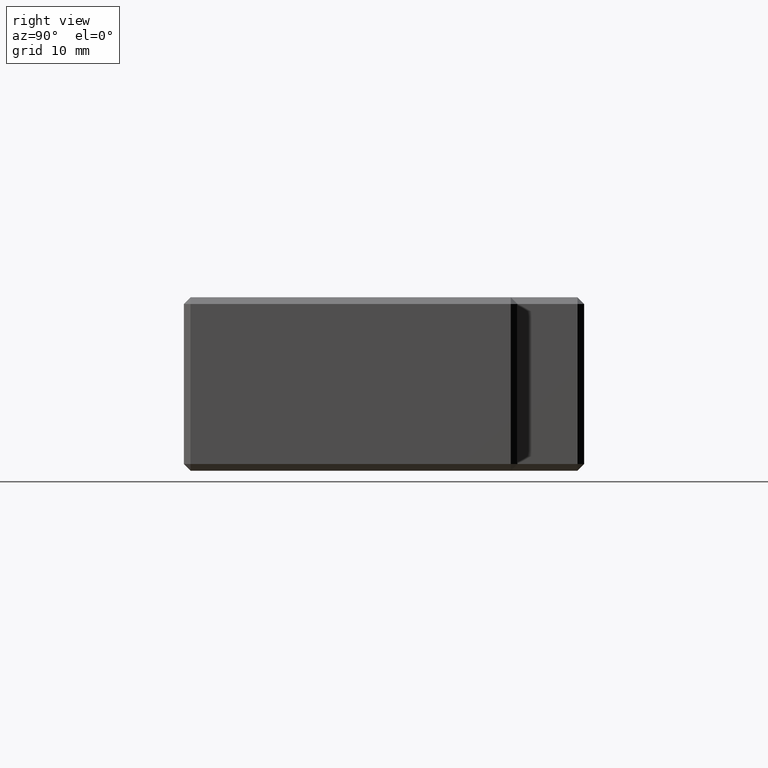
[diagram: clean part render]
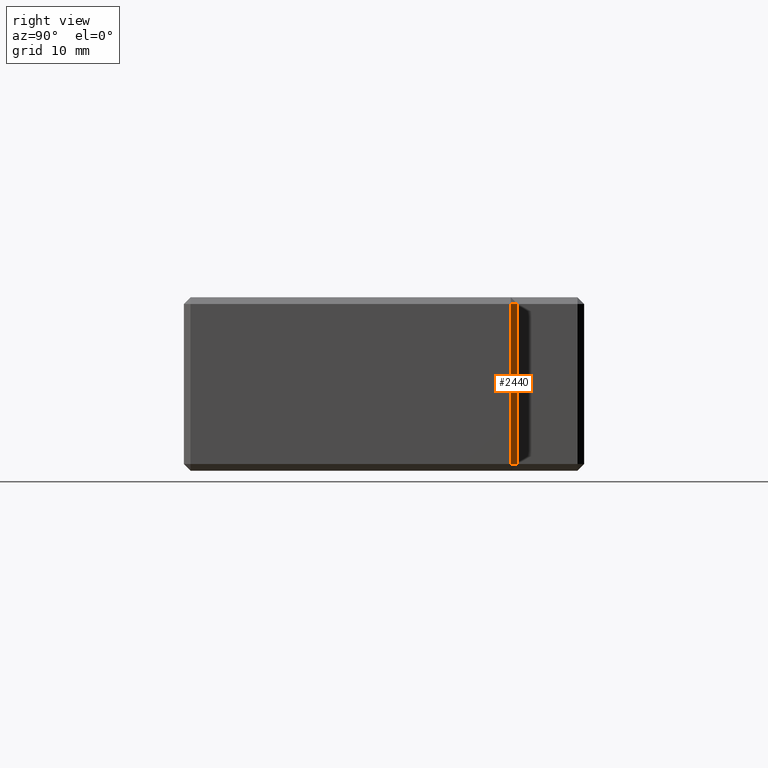
[diagram: same view with one face highlighted and labeled with its STEP entity id]
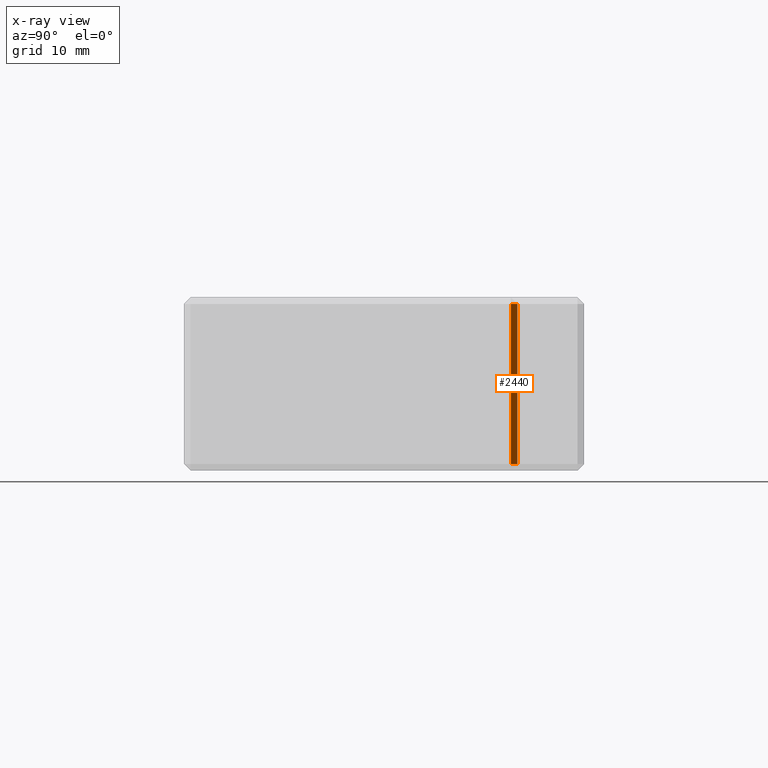
[diagram: x-ray of the same camera — body ghosted, the highlighted face saturated]
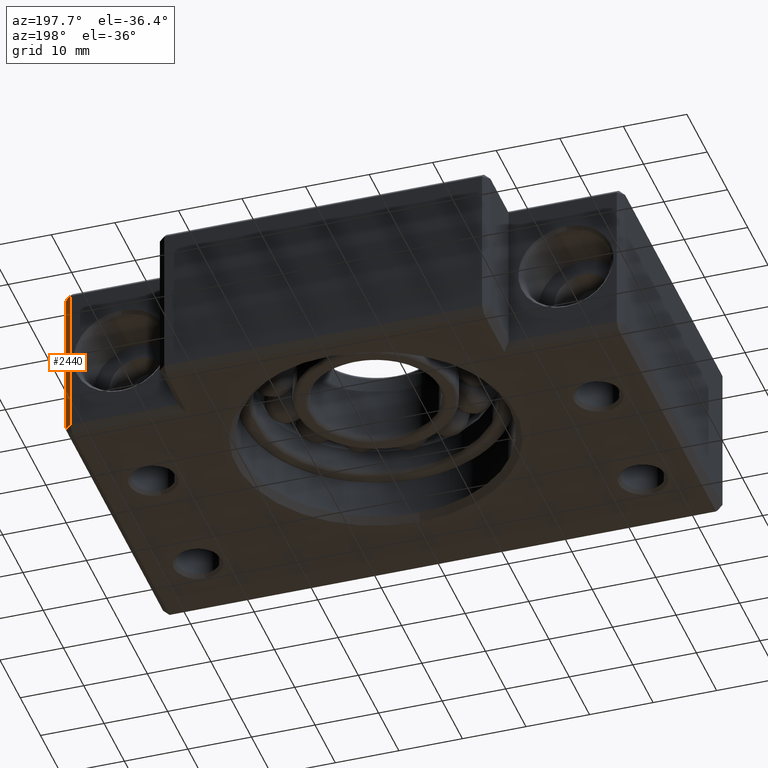
[diagram: same view with one face highlighted and labeled with its STEP entity id]
A machine part, right view. The second image highlights one B-rep face of the part: STEP entity #2440.
The next image is the same camera in x-ray: the body ghosted, the highlighted face saturated — about 0% of this face is hidden behind the body in this view.
A second angle (auxiliary view) of the same face is appended — the face is thin or edge-on in the first view.
In plain terms, the highlighted planar face has unit normal (-0.7071, -0.7071, 0).
Its self-contained STEP definition (entity closure, byte-faithful):
#45 = VECTOR ( 'NONE', #1629, 1000.000000000000000 ) ;
#133 = CARTESIAN_POINT ( 'NONE',  ( 43.00000000000003600, 50.00000000000001400, 12.00000000000002700 ) ) ;
#408 = LINE ( 'NONE', #1052, #476 ) ;
#466 = EDGE_CURVE ( 'NONE', #3580, #5408, #4019, .T. ) ;
#476 = VECTOR ( 'NONE', #1076, 1000.000000000000100 ) ;
#771 = LINE ( 'NONE', #3223, #951 ) ;
#951 = VECTOR ( 'NONE', #3243, 1000.000000000000000 ) ;
#962 = EDGE_CURVE ( 'NONE', #3580, #2689, #771, .T. ) ;
#976 = CARTESIAN_POINT ( 'NONE',  ( 44.00000000000002100, 49.00000000000004300, -12.00000000000003600 ) ) ;
#1052 = CARTESIAN_POINT ( 'NONE',  ( 44.00000000000002100, 49.00000000000004300, -12.00000000000003000 ) ) ;
#1076 = DIRECTION ( 'NONE',  ( 0.7071067811865474600, -0.7071067811865474600, -0.0000000000000000000 ) ) ;
#1095 = DIRECTION ( 'NONE',  ( -0.7071067811865474600, 0.7071067811865474600, -0.0000000000000000000 ) ) ;
#1106 = FACE_OUTER_BOUND ( 'NONE', #1988, .T. ) ;
#1181 = ORIENTED_EDGE ( 'NONE', *, *, #466, .F. ) ;
#1222 = ORIENTED_EDGE ( 'NONE', *, *, #3183, .T. ) ;
#1301 = ORIENTED_EDGE ( 'NONE', *, *, #2764, .F. ) ;
#1308 = ORIENTED_EDGE ( 'NONE', *, *, #962, .T. ) ;
#1576 = CARTESIAN_POINT ( 'NONE',  ( 43.00000000000003600, 50.00000000000001400, 13.00000000000000200 ) ) ;
#1629 = DIRECTION ( 'NONE',  ( -0.0000000000000000000, 0.0000000000000000000, 1.000000000000000000 ) ) ;
#1988 = EDGE_LOOP ( 'NONE', ( #1222, #1181, #1308, #1301 ) ) ;
#2358 = DIRECTION ( 'NONE',  ( -0.7071067811865475700, -0.7071067811865475700, 0.0000000000000000000 ) ) ;
#2440 = ADVANCED_FACE ( 'NONE', ( #1106 ), #4830, .F. ) ;
#2689 = VERTEX_POINT ( 'NONE', #976 ) ;
#2729 = CARTESIAN_POINT ( 'NONE',  ( 44.00000000000002100, 49.00000000000004300, 12.00000000000002500 ) ) ;
#2764 = EDGE_CURVE ( 'NONE', #4208, #2689, #408, .T. ) ;
#3108 = CARTESIAN_POINT ( 'NONE',  ( 43.00000000000003600, 50.00000000000001400, -12.00000000000003600 ) ) ;
#3183 = EDGE_CURVE ( 'NONE', #4208, #5408, #4662, .T. ) ;
#3223 = CARTESIAN_POINT ( 'NONE',  ( 44.00000000000002100, 49.00000000000004300, 13.00000000000000200 ) ) ;
#3243 = DIRECTION ( 'NONE',  ( -0.0000000000000000000, -0.0000000000000000000, -1.000000000000000000 ) ) ;
#3580 = VERTEX_POINT ( 'NONE', #2729 ) ;
#3731 = CARTESIAN_POINT ( 'NONE',  ( 43.00000000000003600, 50.00000000000001400, 12.00000000000002500 ) ) ;
#4019 = LINE ( 'NONE', #133, #4773 ) ;
#4208 = VERTEX_POINT ( 'NONE', #3108 ) ;
#4629 = DIRECTION ( 'NONE',  ( 0.7071067811865474600, -0.7071067811865474600, 0.0000000000000000000 ) ) ;
#4662 = LINE ( 'NONE', #1576, #45 ) ;
#4773 = VECTOR ( 'NONE', #1095, 1000.000000000000100 ) ;
#4830 = PLANE ( 'NONE',  #5131 ) ;
#5131 = AXIS2_PLACEMENT_3D ( 'NONE', #5385, #2358, #4629 ) ;
#5385 = CARTESIAN_POINT ( 'NONE',  ( 43.00000000000003600, 50.00000000000001400, 13.00000000000000200 ) ) ;
#5408 = VERTEX_POINT ( 'NONE', #3731 ) ;